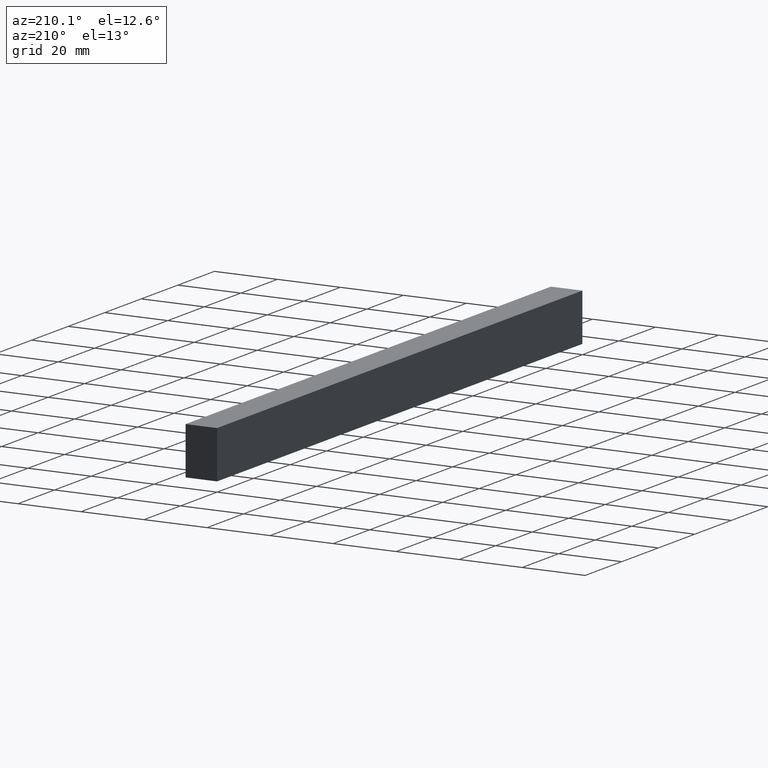
[diagram: clean part render]
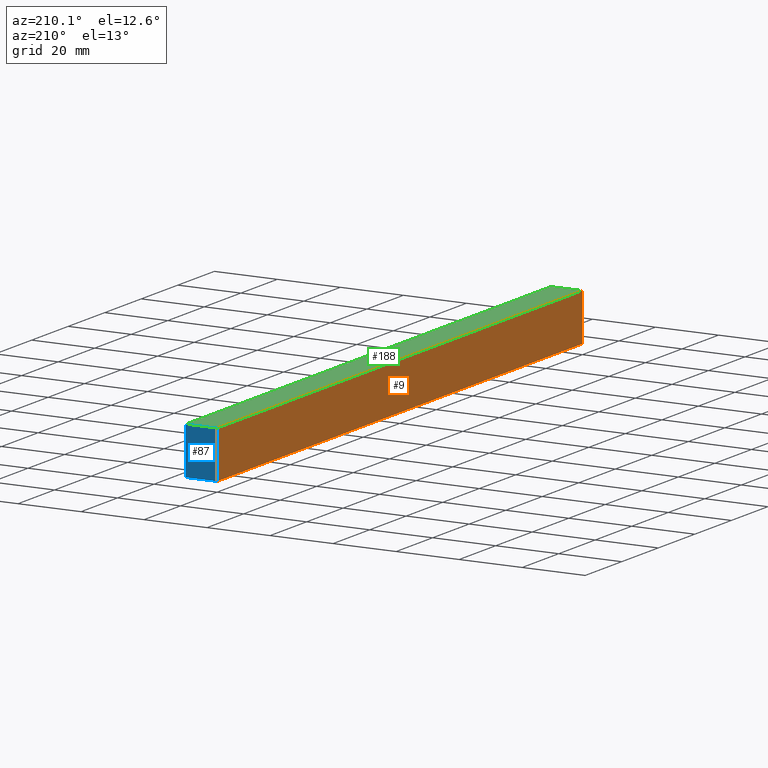
[diagram: same view with three faces highlighted in distinct colors, each labeled with its STEP entity id]
A machine part, auxiliary view with three faces highlighted in distinct colors.
Their STEP definitions:

[orange] entity #9 — the highlighted planar face has unit normal (-1, 0, 0).
#5 = DIRECTION ( 'NONE',  ( 0.0000000000000000000, -1.000000000000000000, 0.0000000000000000000 ) ) ;
#7 = CARTESIAN_POINT ( 'NONE',  ( 0.0000000000000000000, 1000.000000000000000, 15.00000000000000000 ) ) ;
#8 = CARTESIAN_POINT ( 'NONE',  ( 0.0000000000000000000, 200.0000000000000000, 15.00000000000000000 ) ) ;
#9 = ADVANCED_FACE ( 'NONE', ( #125 ), #208, .T. ) ;
#34 = VECTOR ( 'NONE', #109, 1000.000000000000000 ) ;
#39 = CARTESIAN_POINT ( 'NONE',  ( 0.0000000000000000000, 200.0000000000000000, 0.0000000000000000000 ) ) ;
#45 = LINE ( 'NONE', #62, #171 ) ;
#54 = VERTEX_POINT ( 'NONE', #104 ) ;
#56 = VECTOR ( 'NONE', #206, 1000.000000000000000 ) ;
#62 = CARTESIAN_POINT ( 'NONE',  ( 0.0000000000000000000, 200.0000000000000000, 0.0000000000000000000 ) ) ;
#65 = VECTOR ( 'NONE', #5, 1000.000000000000000 ) ;
#70 = EDGE_CURVE ( 'NONE', #128, #161, #45, .T. ) ;
#82 = EDGE_CURVE ( 'NONE', #158, #54, #114, .T. ) ;
#83 = CARTESIAN_POINT ( 'NONE',  ( 0.0000000000000000000, 0.0000000000000000000, 0.0000000000000000000 ) ) ;
#86 = CARTESIAN_POINT ( 'NONE',  ( 0.0000000000000000000, 1000.000000000000000, 0.0000000000000000000 ) ) ;
#90 = ORIENTED_EDGE ( 'NONE', *, *, #70, .T. ) ;
#94 = LINE ( 'NONE', #86, #56 ) ;
#104 = CARTESIAN_POINT ( 'NONE',  ( 0.0000000000000000000, 0.0000000000000000000, 0.0000000000000000000 ) ) ;
#109 = DIRECTION ( 'NONE',  ( -0.0000000000000000000, -0.0000000000000000000, -1.000000000000000000 ) ) ;
#114 = LINE ( 'NONE', #83, #34 ) ;
#125 = FACE_OUTER_BOUND ( 'NONE', #175, .T. ) ;
#128 = VERTEX_POINT ( 'NONE', #8 ) ;
#130 = AXIS2_PLACEMENT_3D ( 'NONE', #7, #210, #191 ) ;
#152 = EDGE_CURVE ( 'NONE', #161, #54, #94, .T. ) ;
#157 = CARTESIAN_POINT ( 'NONE',  ( 0.0000000000000000000, 1000.000000000000000, 15.00000000000000000 ) ) ;
#158 = VERTEX_POINT ( 'NONE', #226 ) ;
#161 = VERTEX_POINT ( 'NONE', #39 ) ;
#162 = LINE ( 'NONE', #157, #65 ) ;
#171 = VECTOR ( 'NONE', #219, 1000.000000000000000 ) ;
#172 = ORIENTED_EDGE ( 'NONE', *, *, #82, .F. ) ;
#173 = ORIENTED_EDGE ( 'NONE', *, *, #227, .F. ) ;
#175 = EDGE_LOOP ( 'NONE', ( #172, #173, #90, #201 ) ) ;
#191 = DIRECTION ( 'NONE',  ( 0.0000000000000000000, 0.0000000000000000000, 1.000000000000000000 ) ) ;
#201 = ORIENTED_EDGE ( 'NONE', *, *, #152, .T. ) ;
#206 = DIRECTION ( 'NONE',  ( 0.0000000000000000000, -1.000000000000000000, 0.0000000000000000000 ) ) ;
#208 = PLANE ( 'NONE',  #130 ) ;
#210 = DIRECTION ( 'NONE',  ( -1.000000000000000000, 0.0000000000000000000, 0.0000000000000000000 ) ) ;
#219 = DIRECTION ( 'NONE',  ( -0.0000000000000000000, -0.0000000000000000000, -1.000000000000000000 ) ) ;
#226 = CARTESIAN_POINT ( 'NONE',  ( 0.0000000000000000000, 0.0000000000000000000, 15.00000000000000000 ) ) ;
#227 = EDGE_CURVE ( 'NONE', #128, #158, #162, .T. ) ;

[blue] entity #87 — the highlighted planar face has unit normal (0, 1, 0).
#3 = DIRECTION ( 'NONE',  ( -0.0000000000000000000, -0.0000000000000000000, 1.000000000000000000 ) ) ;
#8 = CARTESIAN_POINT ( 'NONE',  ( 0.0000000000000000000, 200.0000000000000000, 15.00000000000000000 ) ) ;
#17 = VERTEX_POINT ( 'NONE', #186 ) ;
#23 = CARTESIAN_POINT ( 'NONE',  ( 10.00000000000000000, 200.0000000000000000, 0.0000000000000000000 ) ) ;
#39 = CARTESIAN_POINT ( 'NONE',  ( 0.0000000000000000000, 200.0000000000000000, 0.0000000000000000000 ) ) ;
#41 = DIRECTION ( 'NONE',  ( -1.000000000000000000, -0.0000000000000000000, -0.0000000000000000000 ) ) ;
#45 = LINE ( 'NONE', #62, #171 ) ;
#51 = VECTOR ( 'NONE', #60, 1000.000000000000000 ) ;
#58 = CARTESIAN_POINT ( 'NONE',  ( 0.0000000000000000000, 200.0000000000000000, 15.00000000000000000 ) ) ;
#60 = DIRECTION ( 'NONE',  ( 1.000000000000000000, -0.0000000000000000000, -0.0000000000000000000 ) ) ;
#62 = CARTESIAN_POINT ( 'NONE',  ( 0.0000000000000000000, 200.0000000000000000, 0.0000000000000000000 ) ) ;
#67 = CARTESIAN_POINT ( 'NONE',  ( 0.0000000000000000000, 200.0000000000000000, 0.0000000000000000000 ) ) ;
#69 = ORIENTED_EDGE ( 'NONE', *, *, #212, .F. ) ;
#70 = EDGE_CURVE ( 'NONE', #128, #161, #45, .T. ) ;
#87 = ADVANCED_FACE ( 'NONE', ( #140 ), #153, .T. ) ;
#88 = ORIENTED_EDGE ( 'NONE', *, *, #70, .F. ) ;
#95 = EDGE_CURVE ( 'NONE', #17, #111, #144, .T. ) ;
#110 = AXIS2_PLACEMENT_3D ( 'NONE', #67, #138, #202 ) ;
#111 = VERTEX_POINT ( 'NONE', #207 ) ;
#128 = VERTEX_POINT ( 'NONE', #8 ) ;
#129 = ORIENTED_EDGE ( 'NONE', *, *, #183, .F. ) ;
#136 = CARTESIAN_POINT ( 'NONE',  ( 0.0000000000000000000, 200.0000000000000000, 0.0000000000000000000 ) ) ;
#138 = DIRECTION ( 'NONE',  ( -0.0000000000000000000, 1.000000000000000000, 0.0000000000000000000 ) ) ;
#140 = FACE_OUTER_BOUND ( 'NONE', #192, .T. ) ;
#141 = LINE ( 'NONE', #136, #51 ) ;
#144 = LINE ( 'NONE', #23, #190 ) ;
#153 = PLANE ( 'NONE',  #110 ) ;
#159 = VECTOR ( 'NONE', #41, 1000.000000000000000 ) ;
#161 = VERTEX_POINT ( 'NONE', #39 ) ;
#171 = VECTOR ( 'NONE', #219, 1000.000000000000000 ) ;
#183 = EDGE_CURVE ( 'NONE', #161, #17, #141, .T. ) ;
#186 = CARTESIAN_POINT ( 'NONE',  ( 10.00000000000000000, 200.0000000000000000, 0.0000000000000000000 ) ) ;
#190 = VECTOR ( 'NONE', #3, 1000.000000000000000 ) ;
#192 = EDGE_LOOP ( 'NONE', ( #88, #69, #234, #129 ) ) ;
#202 = DIRECTION ( 'NONE',  ( 1.000000000000000000, 0.0000000000000000000, 0.0000000000000000000 ) ) ;
#207 = CARTESIAN_POINT ( 'NONE',  ( 10.00000000000000000, 200.0000000000000000, 15.00000000000000000 ) ) ;
#212 = EDGE_CURVE ( 'NONE', #111, #128, #213, .T. ) ;
#213 = LINE ( 'NONE', #58, #159 ) ;
#219 = DIRECTION ( 'NONE',  ( -0.0000000000000000000, -0.0000000000000000000, -1.000000000000000000 ) ) ;
#234 = ORIENTED_EDGE ( 'NONE', *, *, #95, .F. ) ;

[green] entity #188 — the highlighted planar face has unit normal (0, 0, 1).
#2 = ORIENTED_EDGE ( 'NONE', *, *, #223, .F. ) ;
#5 = DIRECTION ( 'NONE',  ( 0.0000000000000000000, -1.000000000000000000, 0.0000000000000000000 ) ) ;
#8 = CARTESIAN_POINT ( 'NONE',  ( 0.0000000000000000000, 200.0000000000000000, 15.00000000000000000 ) ) ;
#15 = AXIS2_PLACEMENT_3D ( 'NONE', #85, #156, #165 ) ;
#19 = FACE_OUTER_BOUND ( 'NONE', #75, .T. ) ;
#21 = ORIENTED_EDGE ( 'NONE', *, *, #212, .T. ) ;
#41 = DIRECTION ( 'NONE',  ( -1.000000000000000000, -0.0000000000000000000, -0.0000000000000000000 ) ) ;
#42 = CARTESIAN_POINT ( 'NONE',  ( 0.0000000000000000000, 0.0000000000000000000, 15.00000000000000000 ) ) ;
#58 = CARTESIAN_POINT ( 'NONE',  ( 0.0000000000000000000, 200.0000000000000000, 15.00000000000000000 ) ) ;
#61 = ORIENTED_EDGE ( 'NONE', *, *, #195, .F. ) ;
#65 = VECTOR ( 'NONE', #5, 1000.000000000000000 ) ;
#71 = VECTOR ( 'NONE', #198, 1000.000000000000000 ) ;
#75 = EDGE_LOOP ( 'NONE', ( #61, #2, #21, #194 ) ) ;
#85 = CARTESIAN_POINT ( 'NONE',  ( 10.00000000000000000, 1000.000000000000000, 15.00000000000000000 ) ) ;
#111 = VERTEX_POINT ( 'NONE', #207 ) ;
#112 = VECTOR ( 'NONE', #224, 1000.000000000000000 ) ;
#113 = VERTEX_POINT ( 'NONE', #120 ) ;
#120 = CARTESIAN_POINT ( 'NONE',  ( 10.00000000000000000, 0.0000000000000000000, 15.00000000000000000 ) ) ;
#123 = CARTESIAN_POINT ( 'NONE',  ( 10.00000000000000000, 1000.000000000000000, 15.00000000000000000 ) ) ;
#128 = VERTEX_POINT ( 'NONE', #8 ) ;
#155 = LINE ( 'NONE', #123, #71 ) ;
#156 = DIRECTION ( 'NONE',  ( 0.0000000000000000000, 0.0000000000000000000, 1.000000000000000000 ) ) ;
#157 = CARTESIAN_POINT ( 'NONE',  ( 0.0000000000000000000, 1000.000000000000000, 15.00000000000000000 ) ) ;
#158 = VERTEX_POINT ( 'NONE', #226 ) ;
#159 = VECTOR ( 'NONE', #41, 1000.000000000000000 ) ;
#162 = LINE ( 'NONE', #157, #65 ) ;
#165 = DIRECTION ( 'NONE',  ( 1.000000000000000000, 0.0000000000000000000, 0.0000000000000000000 ) ) ;
#167 = PLANE ( 'NONE',  #15 ) ;
#188 = ADVANCED_FACE ( 'NONE', ( #19 ), #167, .T. ) ;
#194 = ORIENTED_EDGE ( 'NONE', *, *, #227, .T. ) ;
#195 = EDGE_CURVE ( 'NONE', #113, #158, #205, .T. ) ;
#198 = DIRECTION ( 'NONE',  ( 0.0000000000000000000, -1.000000000000000000, 0.0000000000000000000 ) ) ;
#205 = LINE ( 'NONE', #42, #112 ) ;
#207 = CARTESIAN_POINT ( 'NONE',  ( 10.00000000000000000, 200.0000000000000000, 15.00000000000000000 ) ) ;
#212 = EDGE_CURVE ( 'NONE', #111, #128, #213, .T. ) ;
#213 = LINE ( 'NONE', #58, #159 ) ;
#223 = EDGE_CURVE ( 'NONE', #111, #113, #155, .T. ) ;
#224 = DIRECTION ( 'NONE',  ( -1.000000000000000000, -0.0000000000000000000, -0.0000000000000000000 ) ) ;
#226 = CARTESIAN_POINT ( 'NONE',  ( 0.0000000000000000000, 0.0000000000000000000, 15.00000000000000000 ) ) ;
#227 = EDGE_CURVE ( 'NONE', #128, #158, #162, .T. ) ;